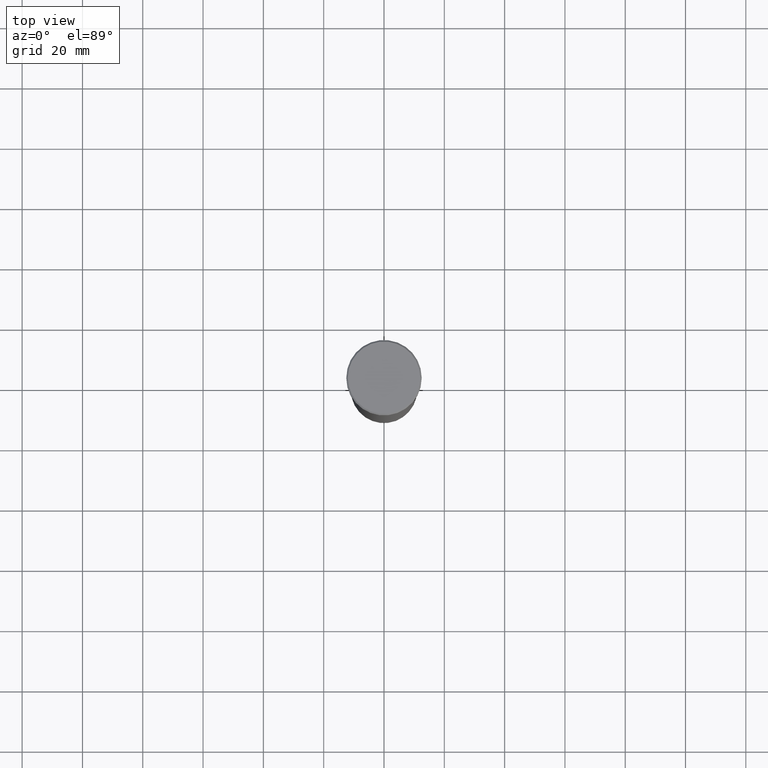
[diagram: clean part render]
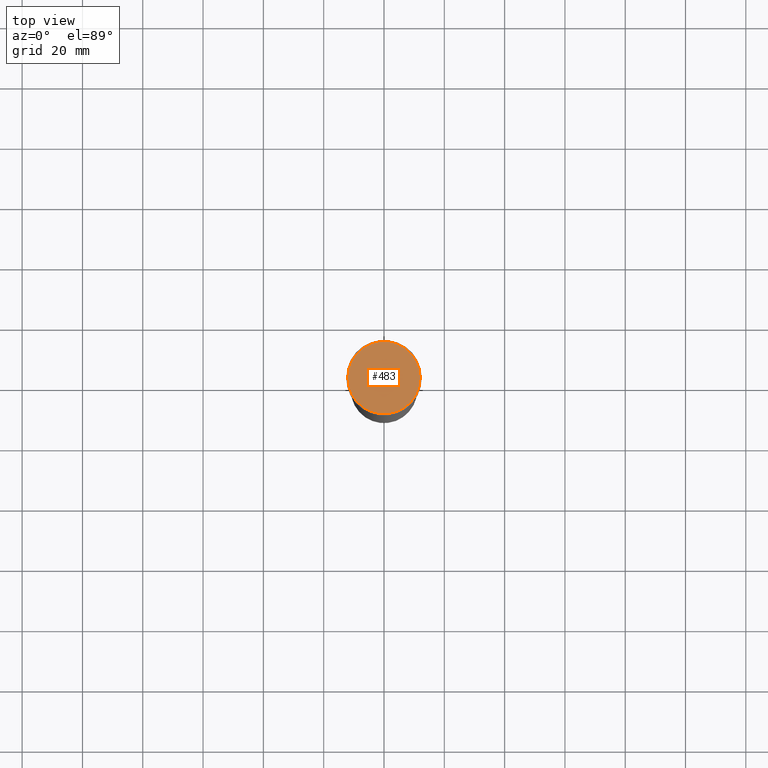
[diagram: same view with one face highlighted and labeled with its STEP entity id]
A machine part, top view. The second image highlights one B-rep face of the part: STEP entity #483.
In plain terms, the highlighted planar face has unit normal (0, -0, 1).
Its self-contained STEP definition (entity closure, byte-faithful):
#9 = ORIENTED_EDGE ( 'NONE', *, *, #597, .T. ) ;
#66 = CARTESIAN_POINT ( 'NONE',  ( 12.00000000000000355, 1.500192328955507734E-15, 0.000000000000000000 ) ) ;
#91 = EDGE_CURVE ( 'NONE', #302, #371, #477, .T. ) ;
#132 = CARTESIAN_POINT ( 'NONE',  ( 0.000000000000000000, 0.000000000000000000, 0.000000000000000000 ) ) ;
#151 = CARTESIAN_POINT ( 'NONE',  ( 0.000000000000000000, 0.000000000000000000, 0.000000000000000000 ) ) ;
#153 = AXIS2_PLACEMENT_3D ( 'NONE', #420, #295, #305 ) ;
#159 = DIRECTION ( 'NONE',  ( 1.000000000000000000, 0.000000000000000000, 0.000000000000000000 ) ) ;
#178 = PLANE ( 'NONE',  #523 ) ;
#212 = EDGE_LOOP ( 'NONE', ( #349, #9 ) ) ;
#258 = CARTESIAN_POINT ( 'NONE',  ( -12.00000000000000355, 0.000000000000000000, 0.000000000000000000 ) ) ;
#260 = DIRECTION ( 'NONE',  ( -0.000000000000000000, -0.000000000000000000, 1.000000000000000000 ) ) ;
#295 = DIRECTION ( 'NONE',  ( -0.000000000000000000, -0.000000000000000000, 1.000000000000000000 ) ) ;
#302 = VERTEX_POINT ( 'NONE', #258 ) ;
#305 = DIRECTION ( 'NONE',  ( 1.000000000000000000, 0.000000000000000000, 0.000000000000000000 ) ) ;
#317 = DIRECTION ( 'NONE',  ( 1.000000000000000000, 0.000000000000000000, 0.000000000000000000 ) ) ;
#319 = FACE_OUTER_BOUND ( 'NONE', #212, .T. ) ;
#323 = CIRCLE ( 'NONE', #153, 12.00000000000000355 ) ;
#349 = ORIENTED_EDGE ( 'NONE', *, *, #91, .T. ) ;
#357 = AXIS2_PLACEMENT_3D ( 'NONE', #151, #260, #159 ) ;
#371 = VERTEX_POINT ( 'NONE', #66 ) ;
#420 = CARTESIAN_POINT ( 'NONE',  ( 0.000000000000000000, 0.000000000000000000, 0.000000000000000000 ) ) ;
#477 = CIRCLE ( 'NONE', #357, 12.00000000000000355 ) ;
#483 = ADVANCED_FACE ( 'NONE', ( #319 ), #178, .T. ) ;
#502 = DIRECTION ( 'NONE',  ( 0.000000000000000000, -0.000000000000000000, 1.000000000000000000 ) ) ;
#523 = AXIS2_PLACEMENT_3D ( 'NONE', #132, #502, #317 ) ;
#597 = EDGE_CURVE ( 'NONE', #371, #302, #323, .T. ) ;